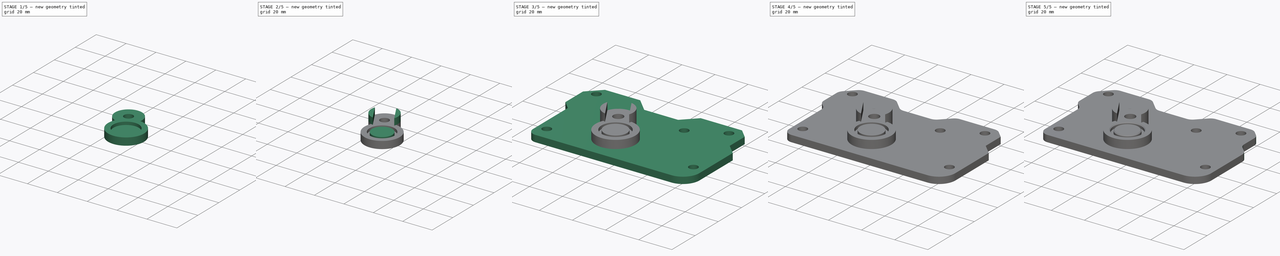
[diagram: build sequence overview — one tinted view per stage of 5, left to right]
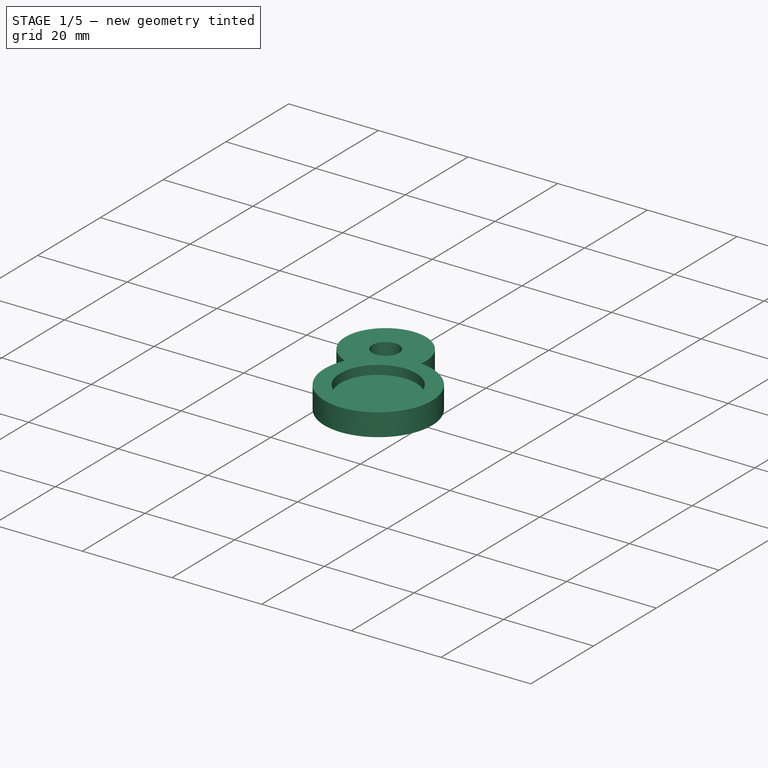
[diagram: stage 1 of 5 — iso view after this stage's code; geometry added in this stage tinted green]
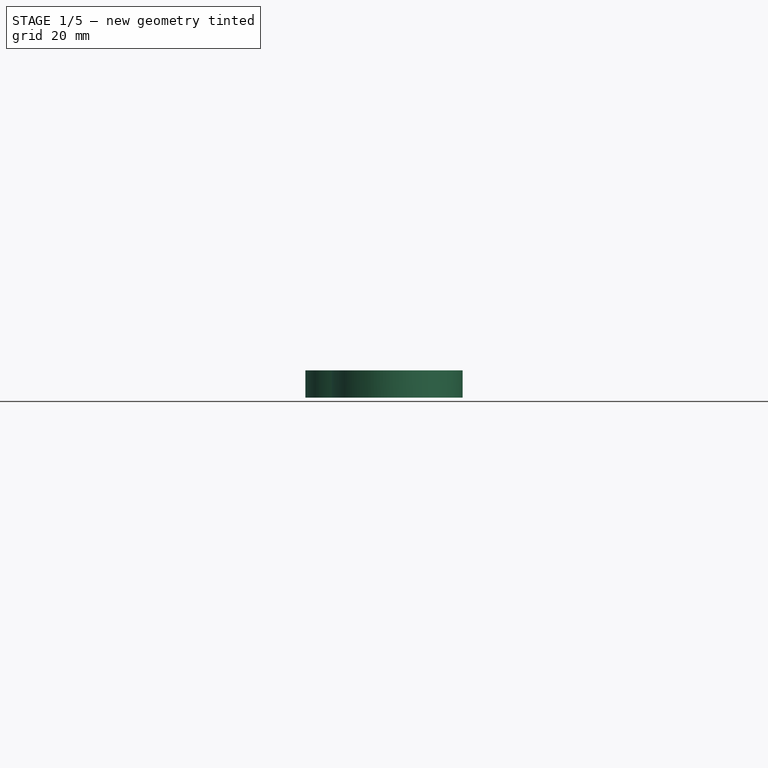
[diagram: stage 1 of 5 — front view after this stage's code; geometry added in this stage tinted green]
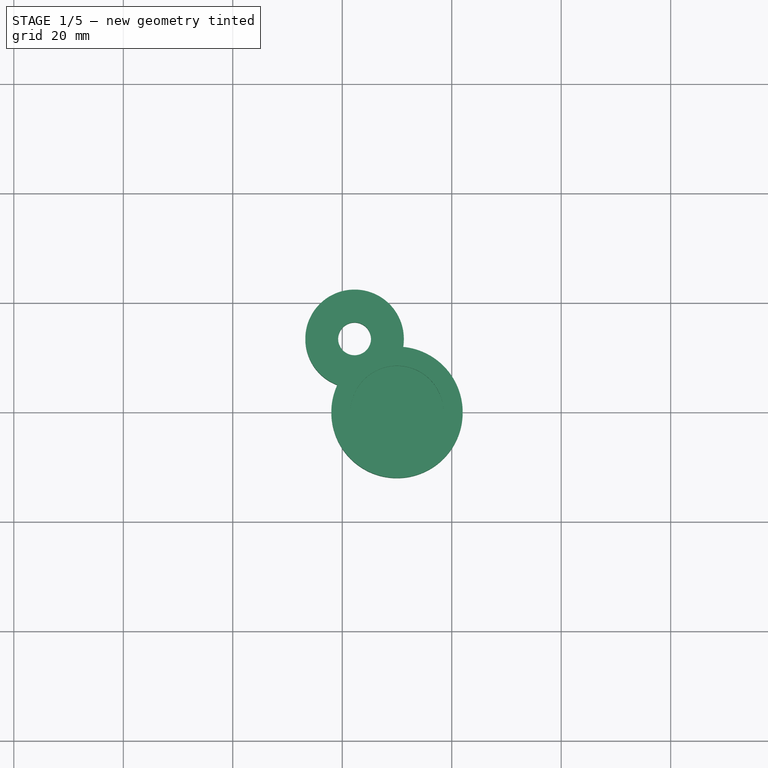
[diagram: stage 1 of 5 — top view after this stage's code; geometry added in this stage tinted green]
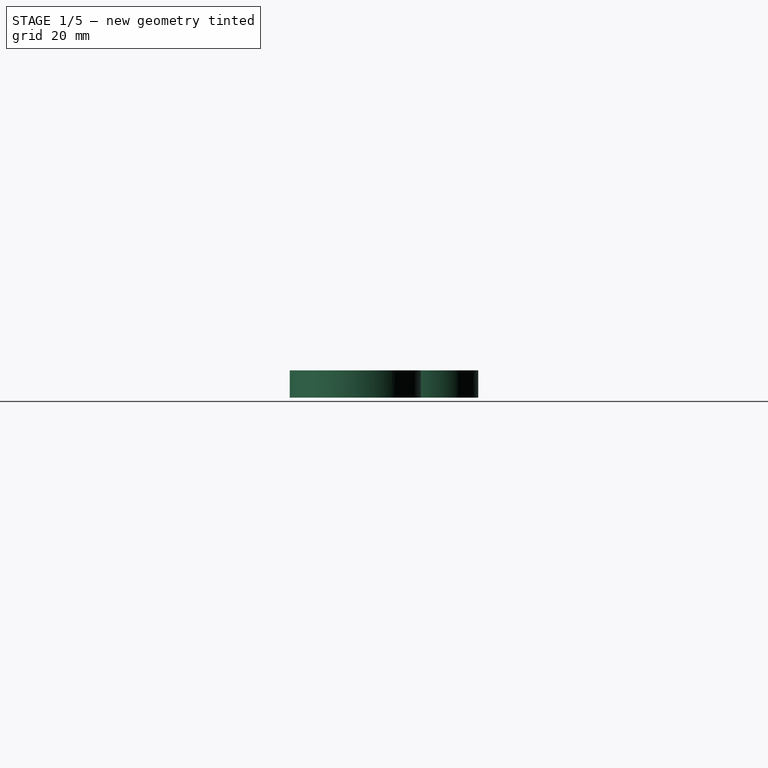
[diagram: stage 1 of 5 — right view after this stage's code; geometry added in this stage tinted green]
FCSTD DOCUMENT  (FreeCAD 0.19R24276 (Git))
Label: Ventil_support_V4_long_bar_oppozite_side_v1
License: All rights reserved
LicenseURL: http://en.wikipedia.org/wiki/All_rights_reserved
objects: Sketcher::SketchObject×9, PartDesign::Pad×6, PartDesign::Fillet×6, PartDesign::Pocket×2, PartDesign::Chamfer×2, PartDesign::Body×1
note: 42 computed .brp shape members not serialized (recipe doc carries the construction recipe); baked Part::Feature solids carry a one-line shape summary decoded from their .brp

FEATURE [Sketcher::SketchObject] Sketch  label="Sketch_d17_d24"
  FullyConstrained = true
  MapMode = 5
  Support = -> [XY_Plane]
  sketch-geometry (4):
    g0: Circle CenterX=0 CenterY=0 CenterZ=0 NormalX=0 NormalY=0 NormalZ=1 AngleXU=0 Radius=8.5
    g1: Circle CenterX=0 CenterY=0 CenterZ=0 NormalX=0 NormalY=0 NormalZ=1 AngleXU=0 Radius=12
    g2: Circle CenterX=-10 CenterY=0 CenterZ=0 NormalX=0 NormalY=0 NormalZ=1 AngleXU=0 Radius=12
    g3: Circle CenterX=-10 CenterY=0 CenterZ=0 NormalX=0 NormalY=0 NormalZ=1 AngleXU=0 Radius=8.5
  constraints (9):
    c: Coincident(g0,g-1)
    c: Diameter(g0) = 17
    c: Coincident(g1,g-1)
    c: Diameter(g1) = 24
    c: PointOnObject(g2,g-1)
    c: Coincident(g3,g2)
    c: Equal(g0,g3)
    c: Equal(g1,g2)
    c: DistanceX(g2,g-1) = 10
FEATURE [PartDesign::Pad] Pad  label="Pad_h2"
  Direction = (1,1,1)
  Length = 2
  Length2 = 100
  Profile = -> Sketch
  Type = 0
FEATURE [Sketcher::SketchObject] Sketch001  label="Sketch001_d18_d24"
  FullyConstrained = true
  MapMode = 5
  Placement = pos=(0,0,2) rot=(0,0,1;0rad)
  Support = -> [Pad]
  sketch-geometry (14):
    g0: LineSegment StartX=0 StartY=0 StartZ=0 EndX=7.75 EndY=-13.4234 EndZ=0
    g1: Circle CenterX=7.75 CenterY=-13.4234 CenterZ=0 NormalX=0 NormalY=0 NormalZ=1 AngleXU=0 Radius=3
    g2: ArcOfCircle CenterX=7.75 CenterY=-13.4234 CenterZ=0 NormalX=0 NormalY=0 NormalZ=1 AngleXU=0 Radius=9 StartAngle=2.97679 EndAngle=7.49519
    g3: ArcOfCircle CenterX=0 CenterY=0 CenterZ=0 NormalX=0 NormalY=0 NormalZ=1 AngleXU=0 Radius=12 StartAngle=5.85373 EndAngle=10.9014
    g4: Circle CenterX=0 CenterY=0 CenterZ=0 NormalX=0 NormalY=0 NormalZ=1 AngleXU=0 Radius=8.5
    g5: LineSegment StartX=0 StartY=0 StartZ=0 EndX=-7.75 EndY=13.4234 EndZ=0
    g6: Circle CenterX=-7.75 CenterY=13.4234 CenterZ=0 NormalX=0 NormalY=0 NormalZ=1 AngleXU=0 Radius=3
    g7: ArcOfCircle CenterX=-7.75 CenterY=13.4234 CenterZ=0 NormalX=0 NormalY=0 NormalZ=1 AngleXU=0 Radius=9 StartAngle=6.11838 EndAngle=10.6368
    g8: ArcOfCircle CenterX=0 CenterY=0 CenterZ=0 NormalX=0 NormalY=0 NormalZ=1 AngleXU=0 Radius=12 StartAngle=2.71214 EndAngle=7.75984
    g9: Circle CenterX=-10 CenterY=0 CenterZ=0 NormalX=0 NormalY=0 NormalZ=1 AngleXU=0 Radius=8.5
    g10: ArcOfCircle CenterX=-10 CenterY=0 CenterZ=0 NormalX=0 NormalY=0 NormalZ=1 AngleXU=0 Radius=12 StartAngle=2.71214 EndAngle=7.75984
    g11: LineSegment StartX=-10 StartY=0 StartZ=0 EndX=-17.75 EndY=13.4234 EndZ=0
    g12: Circle CenterX=-17.75 CenterY=13.4234 CenterZ=0 NormalX=0 NormalY=0 NormalZ=1 AngleXU=0 Radius=3
    g13: ArcOfCircle CenterX=-17.75 CenterY=13.4234 CenterZ=0 NormalX=0 NormalY=0 NormalZ=1 AngleXU=0 Radius=9 StartAngle=6.11838 EndAngle=10.6368
  constraints (40):
    c: Coincident(g0,g-1)
    c: Angle(g0,g-1) = 1.0472
    c: Coincident(g1,g0)
    c: Diameter(g1) = 6
    c: Distance(g0) = 15.5
    c: Coincident(g2,g0)
    c: Diameter(g2) = 18
    c: Coincident(g3,g-1)
    c: Coincident(g4,g-1)
    c: Diameter(g3) = 24
    c: Diameter(g4) = 17
    c: Coincident(g3,g2)
    c: Coincident(g3,g2)
    c: Coincident(g5,g3)
    c: Parallel(g5,g0)
    c: Coincident(g6,g5)
    c: Diameter(g6) = 6
    c: Coincident(g7,g5)
    c: Diameter(g7) = 18
    c: Coincident(g8,g4)
    c: Diameter(g8) = 24
    c: PointOnObject(g8,g7)
    c: PointOnObject(g8,g7)
    c: PointOnObject(g7,g3)
    c: PointOnObject(g7,g3)
    c: Distance(g6,g4) = 15.5
    c: PointOnObject(g9,g-1)
    c: Equal(g4,g9)
    c: DistanceX(g9,g4) = 10
    c: Coincident(g10,g9)
    c: Equal(g10,g8)
    c: Coincident(g11,g9)
    c: Angle(g-1,g11) = 2.0944
    c: Distance(g11) = 15.5
    c: Coincident(g12,g11)
    c: Coincident(g13,g11)
    c: Equal(g6,g12)
    c: Equal(g13,g7)
    c: Coincident(g13,g10)
    c: Coincident(g10,g13)
FEATURE [PartDesign::Pad] Pad001  label="Pad001_h5"
  BaseFeature = -> Pad
  Direction = (1,1,1)
  Length = 5
  Length2 = 100
  Profile = -> Sketch001
  Reversed = true
  Type = 0
FEATURE [Sketcher::SketchObject] Sketch002  label="Sketch002_d17"
  FullyConstrained = true
  MapMode = 5
  Placement = pos=(0,0,-3) rot=(1,0,0;3.14159rad)
  Support = -> [Pad001]
  sketch-geometry (3):
    g0: Circle CenterX=0 CenterY=0 CenterZ=0 NormalX=0 NormalY=0 NormalZ=1 AngleXU=0 Radius=6.9
    g1: Circle CenterX=0 CenterY=0 CenterZ=0 NormalX=0 NormalY=0 NormalZ=1 AngleXU=0 Radius=8.5
    g2: Circle CenterX=-10 CenterY=0 CenterZ=0 NormalX=0 NormalY=0 NormalZ=1 AngleXU=0 Radius=8.5
  constraints (7):
    c: Coincident(g0,g-1)
    c: Coincident(g1,g-1)
    c: Diameter(g1) = 17
    c: Diameter(g0) = 13.8
    c: PointOnObject(g2,g-1)
    c: Equal(g1,g2)
    c: DistanceX(g2,g1) = 10
FEATURE [PartDesign::Pad] Pad002  label="Pad002_h3"
  BaseFeature = -> Pad001
  Direction = (1,1,1)
  Length = 3
  Length2 = 100
  Profile = -> Sketch002
  Reversed = true
  Type = 0
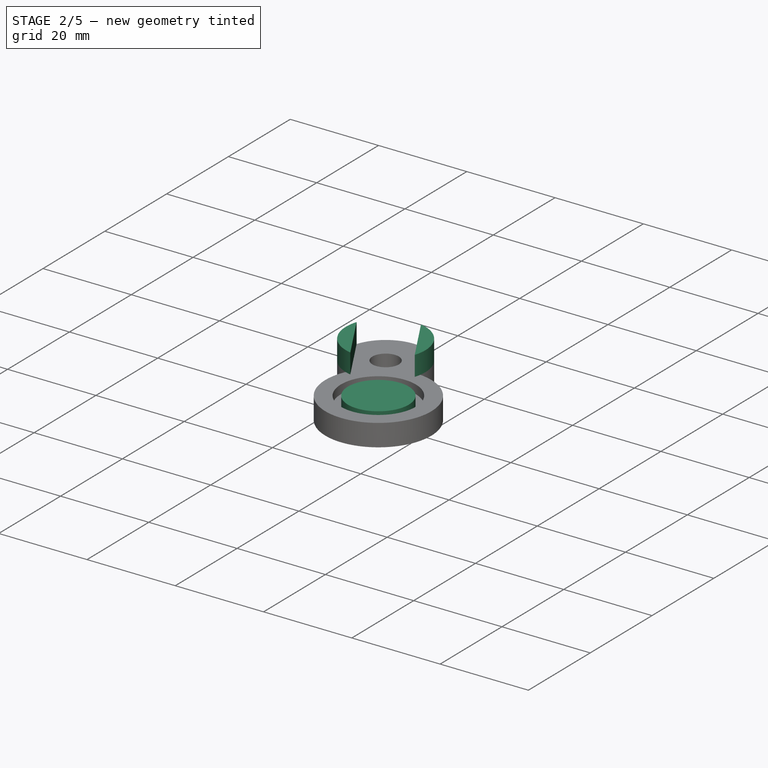
[diagram: stage 2 of 5 — iso view after this stage's code; geometry added in this stage tinted green]
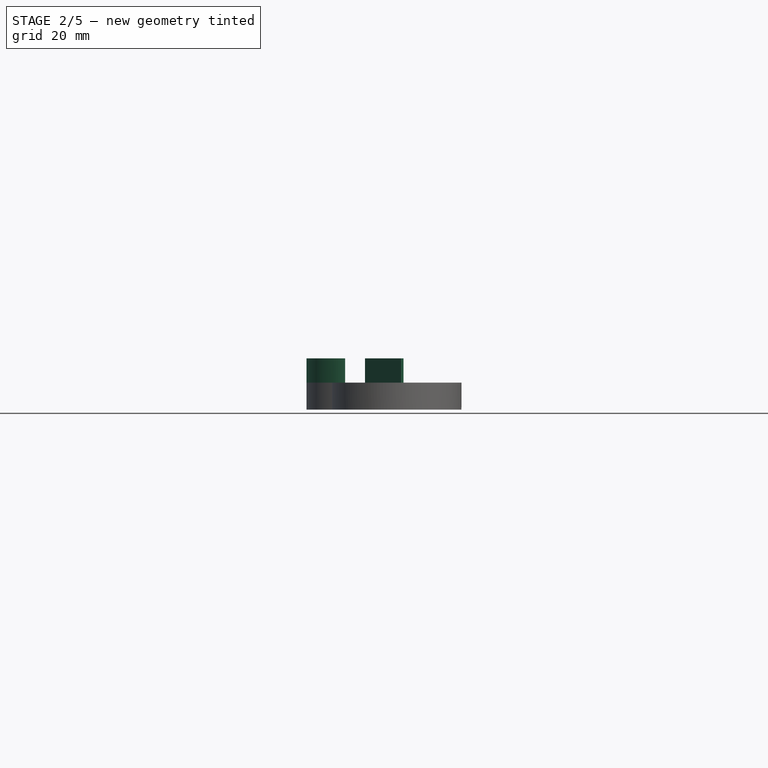
[diagram: stage 2 of 5 — front view after this stage's code; geometry added in this stage tinted green]
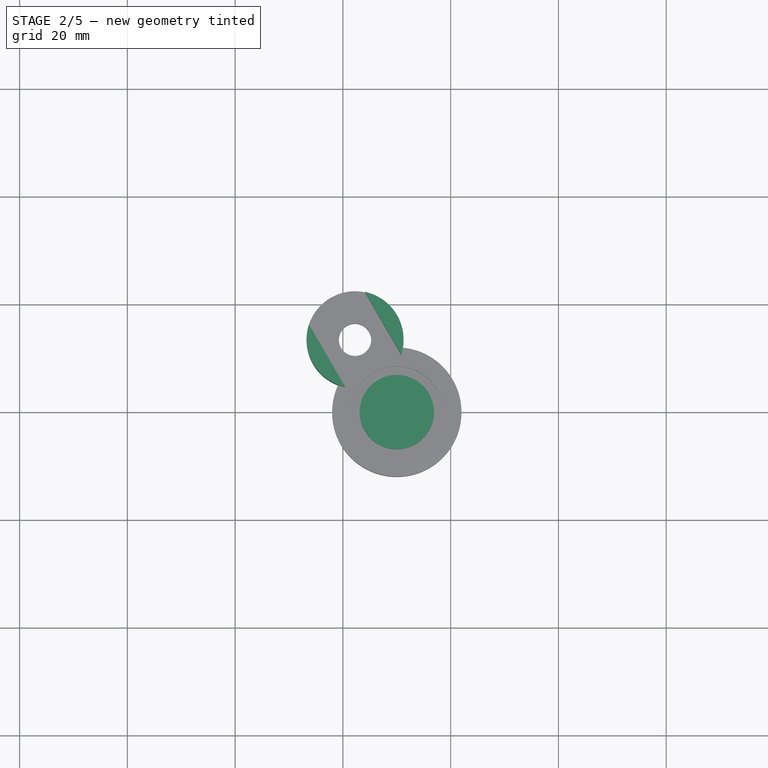
[diagram: stage 2 of 5 — top view after this stage's code; geometry added in this stage tinted green]
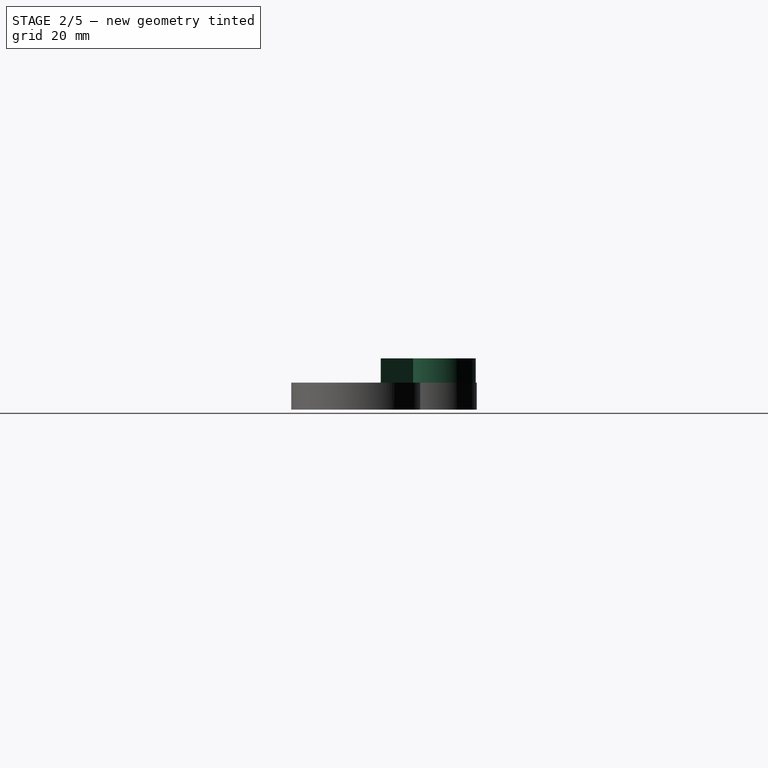
[diagram: stage 2 of 5 — right view after this stage's code; geometry added in this stage tinted green]
FEATURE [Sketcher::SketchObject] Sketch003  label="Sketch003_d13,6"
  FullyConstrained = true
  MapMode = 5
  Support = -> [Pad002]
  sketch-geometry (2):
    g0: Circle CenterX=0 CenterY=0 CenterZ=0 NormalX=0 NormalY=0 NormalZ=1 AngleXU=0 Radius=6.9
    g1: Circle CenterX=-10 CenterY=0 CenterZ=0 NormalX=0 NormalY=0 NormalZ=1 AngleXU=0 Radius=6.9
  constraints (5):
    c: Coincident(g0,g-1)
    c: Diameter(g0) = 13.8
    c: PointOnObject(g1,g-1)
    c: Equal(g1,g0)
    c: DistanceX(g1,g0) = 10
FEATURE [PartDesign::Pad] Pad003  label="Pad003_h2"
  BaseFeature = -> Pad002
  Direction = (1,1,1)
  Length = 2
  Length2 = 100
  Profile = -> Sketch003
  Type = 0
FEATURE [Sketcher::SketchObject] Sketch004  label="Sketch004_d18_2half"
  FullyConstrained = false
  MapMode = 5
  Placement = pos=(0,0,2) rot=(0,0,1;0rad)
  Support = -> [Pad003]
  sketch-geometry (17):
    g0: LineSegment StartX=-16.3003 StartY=16.2329 StartZ=0 EndX=-9.59205 EndY=4.61392 EndZ=0
    g1: LineSegment StartX=0.800254 StartY=10.6139 StartZ=0 EndX=-5.90795 EndY=22.2329 EndZ=0
    g2: ArcOfCircle CenterX=-7.75 CenterY=13.4234 CenterZ=0 NormalX=0 NormalY=0 NormalZ=1 AngleXU=0 Radius=9 StartAngle=2.82412 EndAngle=4.50626
    g3: LineSegment StartX=-9.59205 StartY=4.61392 StartZ=0 EndX=-4.3959 EndY=7.61392 EndZ=0
    g4: ArcOfCircle CenterX=-7.75 CenterY=13.4234 CenterZ=0 NormalX=0 NormalY=0 NormalZ=1 AngleXU=0 Radius=9 StartAngle=5.96572 EndAngle=7.64785
    g5: Circle CenterX=0 CenterY=0 CenterZ=0 NormalX=0 NormalY=0 NormalZ=1 AngleXU=0 Radius=9.75
    g6: LineSegment StartX=0 StartY=0 StartZ=0 EndX=-7.75 EndY=13.4234 EndZ=0
    g7: LineSegment StartX=-7.75 StartY=13.4234 StartZ=0 EndX=-4.3959 EndY=7.61392 EndZ=0
    g8: LineSegment StartX=-10 StartY=27.0189 StartZ=0 EndX=-10 EndY=0 EndZ=0
    g9: LineSegment StartX=-26.3003 StartY=16.2329 StartZ=0 EndX=-19.5921 EndY=4.61392 EndZ=0
    g10: LineSegment StartX=-9.19975 StartY=10.6139 StartZ=0 EndX=-15.9079 EndY=22.2329 EndZ=0
    g11: ArcOfCircle CenterX=-17.75 CenterY=13.4234 CenterZ=0 NormalX=0 NormalY=0 NormalZ=1 AngleXU=0 Radius=9 StartAngle=2.82412 EndAngle=4.50626
    g12: LineSegment StartX=-19.5921 StartY=4.61392 StartZ=0 EndX=-14.3959 EndY=7.61392 EndZ=0
    g13: ArcOfCircle CenterX=-17.75 CenterY=13.4234 CenterZ=0 NormalX=0 NormalY=0 NormalZ=1 AngleXU=0 Radius=9 StartAngle=5.96572 EndAngle=7.64785
    g14: LineSegment StartX=-10 StartY=0 StartZ=0 EndX=-17.75 EndY=13.4234 EndZ=0
    g15: LineSegment StartX=-17.75 StartY=13.4234 StartZ=0 EndX=-14.3959 EndY=7.61392 EndZ=0
    g16: LineSegment StartX=-31.8592 StartY=0 StartZ=0 EndX=-10 EndY=0 EndZ=0
  constraints (47):
    c: Diameter(g2) = 18
    c: PointOnObject(g0,g2)
    c: Coincident(g3,g0)
    c: Distance(g0,g1) = 12
    c: Coincident(g4,g1)
    c: Coincident(g2,g0)
    c: Equal(g2,g4)
    c: PointOnObject(g2,g3)
    c: Coincident(g4,g1)
    c: Coincident(g2,g4)
    c: Coincident(g5,g-1)
    c: Diameter(g5) = 19.5
    c: Coincident(g6,g-1)
    c: Distance(g6) = 15.5
    c: Coincident(g7,g2)
    c: Coincident(g7,g3)
    c: Symmetric(g0,g1,g3)
    c: Parallel(g7,g1)
    c: Parallel(g0,g7)
    c: Coincident(g2,g6)
    c: Angle(g-1,g6) = 2.0944
    c: Parallel(g6,g7)
    c: Vertical(g8)
    c: Equal(g2,g11) = 18
    c: PointOnObject(g9,g11)
    c: Coincident(g12,g9)
    c: Distance(g9,g10) = 12
    c: Coincident(g13,g10)
    c: Coincident(g11,g9)
    c: Equal(g11,g13)
    c: PointOnObject(g11,g12)
    c: Coincident(g13,g10)
    c: Coincident(g11,g13)
    c: Equal(g6,g14) = 15.5
    c: Coincident(g15,g11)
    c: Coincident(g15,g12)
    c: Symmetric(g9,g10,g12)
    c: Parallel(g15,g10)
    c: Parallel(g9,g15)
    c: Coincident(g11,g14)
    c: Parallel(g14,g15)
    c: PointOnObject(g16,g-1)
    c: Horizontal(g16)
    c: Coincident(g16,g8)
    c: DistanceX(g8,g-1) = 10
    c: Parallel(g14,g6)
    c: Coincident(g14,g8)
FEATURE [PartDesign::Pad] Pad004  label="Pad004_h4,5"
  BaseFeature = -> Pad003
  Direction = (1,1,1)
  Length = 4.5
  Length2 = 100
  Profile = -> Sketch004
  Type = 0
FEATURE [Sketcher::SketchObject] Sketch005  label="Sketch005_54x20"
  AttachmentOffset = pos=(0,0,-5) rot=(0,0,1;0rad)
  FullyConstrained = false
  MapMode = 5
  Placement = pos=(0,0,-3) rot=(0,0,1;0rad)
  Support = -> [Pad004]
  sketch-geometry (44):
    g0: GeomPoint X=1 Y=0 Z=0
    g1: GeomPoint X=1 Y=0 Z=0
    g2: GeomPoint X=1 Y=0 Z=0
    g3: GeomPoint X=1 Y=0 Z=0
    g4: Circle CenterX=-23.5 CenterY=5 CenterZ=0 NormalX=0 NormalY=0 NormalZ=1 AngleXU=0 Radius=2
    g5: Circle CenterX=-23.5 CenterY=-5 CenterZ=0 NormalX=0 NormalY=0 NormalZ=1 AngleXU=0 Radius=2
    g6: LineSegment StartX=1 StartY=0 StartZ=0 EndX=1 EndY=-5 EndZ=0
    g7: Circle CenterX=25.5 CenterY=5 CenterZ=0 NormalX=0 NormalY=0 NormalZ=1 AngleXU=0 Radius=2
    g8: Circle CenterX=25.5 CenterY=-5 CenterZ=0 NormalX=0 NormalY=0 NormalZ=1 AngleXU=0 Radius=2
    g9: LineSegment StartX=1 StartY=0 StartZ=0 EndX=-23.5 EndY=0 EndZ=0
    g10: LineSegment StartX=1 StartY=0 StartZ=0 EndX=49.8748 EndY=0 EndZ=0
    g11: ArcOfCircle CenterX=-7.75 CenterY=13.4234 CenterZ=0 NormalX=0 NormalY=0 NormalZ=1 AngleXU=0 Radius=9 StartAngle=0.290352 EndAngle=2.85124
    g12: LineSegment StartX=0 StartY=0 StartZ=0 EndX=-7.75 EndY=13.4234 EndZ=0
    g13: Circle CenterX=-44.5 CenterY=0 CenterZ=0 NormalX=0 NormalY=0 NormalZ=1 AngleXU=0 Radius=2.65
    g14: LineSegment StartX=42 StartY=-19 StartZ=0 EndX=-50.5 EndY=-19 EndZ=0
    g15: LineSegment StartX=-50 StartY=-19 StartZ=0 EndX=47 EndY=-19 EndZ=0
    g16: LineSegment StartX=47 StartY=-19 StartZ=0 EndX=47 EndY=16 EndZ=0
    g17: Circle CenterX=-44.5 CenterY=0 CenterZ=0 NormalX=0 NormalY=0 NormalZ=1 AngleXU=0 Radius=5.5
    g18: Circle CenterX=40.5 CenterY=-5 CenterZ=0 NormalX=0 NormalY=0 NormalZ=1 AngleXU=0 Radius=2.65
    g19: Circle CenterX=40.5 CenterY=-5 CenterZ=0 NormalX=0 NormalY=0 NormalZ=1 AngleXU=0 Radius=5.5
    g20: LineSegment StartX=-50 StartY=-19 StartZ=0 EndX=-50 EndY=16 EndZ=0
    g21: LineSegment StartX=-16.3733 StartY=16 StartZ=0 EndX=-50 EndY=16 EndZ=0
    g22: LineSegment StartX=0.873288 StartY=16 StartZ=0 EndX=47 EndY=16 EndZ=0
    g23: Circle CenterX=-27.75 CenterY=27.4234 CenterZ=0 NormalX=0 NormalY=0 NormalZ=1 AngleXU=0 Radius=2.65
    g24: Circle CenterX=-47.75 CenterY=37.4234 CenterZ=0 NormalX=0 NormalY=0 NormalZ=1 AngleXU=0 Radius=2.65
    g25: Circle CenterX=32.25 CenterY=37.4234 CenterZ=0 NormalX=0 NormalY=0 NormalZ=1 AngleXU=0 Radius=2.65
    g26: LineSegment StartX=47 StartY=16 StartZ=0 EndX=47 EndY=19.6128 EndZ=0
    g27: LineSegment StartX=47 StartY=19.6128 StartZ=0 EndX=40.9545 EndY=25.6583 EndZ=0
    g28: LineSegment StartX=40.9545 StartY=25.6583 StartZ=0 EndX=40.9545 EndY=38.5536 EndZ=0
    g29: LineSegment StartX=40.9545 StartY=38.5536 StartZ=0 EndX=35.5887 EndY=43.9194 EndZ=0
    g30: LineSegment StartX=10.6316 StartY=43.9194 StartZ=0 EndX=35.5887 EndY=43.9194 EndZ=0
    g31: LineSegment StartX=10.6316 StartY=43.9194 StartZ=0 EndX=2.61631 EndY=35.9041 EndZ=0
    g32: LineSegment StartX=2.61631 StartY=35.9041 StartZ=0 EndX=-17.8463 EndY=35.9041 EndZ=0
    g33: LineSegment StartX=-17.8463 StartY=35.9041 StartZ=0 EndX=-25.8617 EndY=43.9194 EndZ=0
    g34: LineSegment StartX=-25.8617 StartY=43.9194 StartZ=0 EndX=-47.1343 EndY=43.9194 EndZ=0
    g35: LineSegment StartX=-47.1343 StartY=43.9194 StartZ=0 EndX=-54.9278 EndY=36.1259 EndZ=0
    g36: LineSegment StartX=-54.9278 StartY=36.1259 StartZ=0 EndX=-54.9278 EndY=20.9278 EndZ=0
    g37: LineSegment StartX=-54.9278 StartY=20.9278 StartZ=0 EndX=-50 EndY=16 EndZ=0
    g38: Circle CenterX=12.25 CenterY=27.4234 CenterZ=0 NormalX=0 NormalY=0 NormalZ=1 AngleXU=0 Radius=2.65
    g39: Circle CenterX=-7.75 CenterY=52.9234 CenterZ=0 NormalX=0 NormalY=0 NormalZ=1 AngleXU=0 Radius=16
    g40: LineSegment StartX=-26.2058 StartY=22.9234 StartZ=0 EndX=-15.8764 EndY=22.9234 EndZ=0
    g41: LineSegment StartX=-10 StartY=0 StartZ=0 EndX=-10 EndY=-7.70468 EndZ=0
    g42: Circle CenterX=-44.5 CenterY=-10 CenterZ=0 NormalX=0 NormalY=0 NormalZ=1 AngleXU=0 Radius=2.65
    g43: Circle CenterX=-44.5 CenterY=-10 CenterZ=0 NormalX=0 NormalY=0 NormalZ=1 AngleXU=0 Radius=5.5
  constraints (106):
    c: Coincident(g1,g0)
    c: Coincident(g3,g2)
    c: Coincident(g2,g0)
    c: Vertical(g5,g4)
    c: Coincident(g6,g0)
    c: Vertical(g6)
    c: Equal(g8,g7)
    c: Equal(g7,g5)
    c: Equal(g5,g4)
    c: Diameter(g8) = 4
    c: Vertical(g7,g8)
    c: Horizontal(g5,g8)
    c: Horizontal(g4,g7)
    c: Coincident(g9,g0)
    c: Horizontal(g9)
    c: Symmetric(g5,g4,g9)
    c: Coincident(g10,g0)
    c: Horizontal(g10)
    c: Symmetric(g5,g8,g6)
    c: DistanceX(g5,g8) = 49
    c: Horizontal(g0,g-1)
    c: Diameter(g11) = 18
    c: Coincident(g12,g-1)
    c: Coincident(g12,g11)
    c: Angle(g10,g12) = 2.0944
    c: Distance(g11,g-1) = 15.5
    c: Horizontal(g14)
    c: DistanceY(g14,g-1) = 19
    c: Coincident(g16,g15)
    c: Vertical(g16)
    c: Diameter(g13) = 5.3
    c: Horizontal(g15)
    c: Coincident(g17,g13)
    c: Diameter(g17) = 11
    c: Horizontal(g13,g9)
    c: DistanceX(g14,g13) = 6
    c: DistanceY(g8,g7) = 10
    c: Equal(g18,g13)
    c: Coincident(g19,g18)
    c: Equal(g17,g19)
    c: DistanceX(g13,g18) = 85
    c: DistanceX(g14,g-1) = 50.5
    c: DistanceX(g15,g15) = 97
    c: Coincident(g20,g15)
    c: Vertical(g20)
    c: Tangent(g20,g17)
    c: Coincident(g21,g11)
    c: Horizontal(g21)
    c: Coincident(g20,g21)
    c: DistanceY(g20,g20) = 35
    c: Horizontal(g11,g11)
    c: DistanceY(g18,g10) = 5
    c: Coincident(g22,g11)
    c: Coincident(g22,g16)
    c: Horizontal(g22)
    c: Equal(g25,g24)
    c: Equal(g24,g23)
    c: Horizontal(g24,g25)
    c: DistanceY(g15,g-1) = 19
    c: Coincident(g26,g16)
    c: Vertical(g26)
    c: Coincident(g27,g26)
    c: Coincident(g28,g27)
    c: Vertical(g28)
    c: Coincident(g29,g28)
    c: Coincident(g30,g29)
    c: Horizontal(g30)
    c: Coincident(g31,g30)
    c: Coincident(g32,g31)
    c: Horizontal(g32)
    c: Coincident(g33,g32)
    c: Coincident(g34,g33)
    c: Horizontal(g34)
    c: Coincident(g35,g34)
    c: Coincident(g36,g35)
    c: Vertical(g36)
    c: Coincident(g37,g36)
    c: Coincident(g37,g20)
    c: Angle(g27,g26) = 2.35619
    c: Angle(g29,g28) = 2.35619
    c: Angle(g31,g30) = 2.35619
    c: Angle(g32,g33) = 2.35619
    c: Angle(g35,g34) = 2.35619
    c: Angle(g37,g36) = 2.35619
    c: Horizontal(g23,g38)
    c: DistanceY(g23,g24) = 10
    c: DistanceX(g24,g23) = 20
    c: DistanceX(g23,g38) = 40
    c: DistanceX(g38,g25) = 20
    c: DistanceX(g23,g11) = 20
    c: DistanceY(g11,g23) = 14
    c: Horizontal(g33,g30)
    c: Vertical(g11,g39)
    c: Horizontal(g40)
    c: DistanceY(g40,g23) = 4.5
    c: DistanceY(g40,g39) = 30
    c: Diameter(g39) = 32
    c: Vertical(g41)
    c: DistanceX(g41,g-1) = 10
    c: DistanceX(g5,g41) = 13.5
    c: PointOnObject(g41,g9)
    c: Coincident(g43,g42)
    c: Equal(g13,g42)
    c: Equal(g17,g43)
    c: Vertical(g13,g42)
    c: DistanceY(g42,g13) = 10
FEATURE [Sketcher::SketchObject] Sketch006
  FullyConstrained = false
  MapMode = 5
  Placement = pos=(0,0,-3) rot=(0,0,1;0rad)
  sketch-geometry (6):
    g0: Circle CenterX=7.75 CenterY=-13.4234 CenterZ=0 NormalX=0 NormalY=0 NormalZ=1 AngleXU=0 Radius=3
    g1: LineSegment StartX=0 StartY=0 StartZ=0 EndX=7.75 EndY=-13.4234 EndZ=0
    g2: LineSegment StartX=0 StartY=0 StartZ=0 EndX=-7.75 EndY=13.4234 EndZ=0
    g3: Circle CenterX=-7.75 CenterY=13.4234 CenterZ=0 NormalX=0 NormalY=0 NormalZ=1 AngleXU=0 Radius=3
    g4: Circle CenterX=-17.75 CenterY=13.4234 CenterZ=0 NormalX=0 NormalY=0 NormalZ=1 AngleXU=0 Radius=3
    g5: LineSegment StartX=-10 StartY=0 StartZ=0 EndX=-17.75 EndY=13.4234 EndZ=0
  constraints (15):
    c: Coincident(g1,g-1)
    c: Coincident(g1,g0)
    c: Angle(g1,g-1) = 1.0472
    c: Distance(g1) = 15.5
    c: Diameter(g0) = 6
    c: Coincident(g2,g-1)
    c: Parallel(g2,g1)
    c: Distance(g2,g2) = 15.5
    c: Coincident(g3,g2)
    c: Equal(g0,g3)
    c: Equal(g2,g5) = 15.5
    c: Coincident(g4,g5)
    c: PointOnObject(g5,g-1)
    c: DistanceX(g5,g-1) = 10
    c: Parallel(g5,g2)
FEATURE [PartDesign::Pocket] Pocket
  BaseFeature = -> Pad004
  Length = 5
  Length2 = 100
  Profile = -> Sketch006
  Type = 0
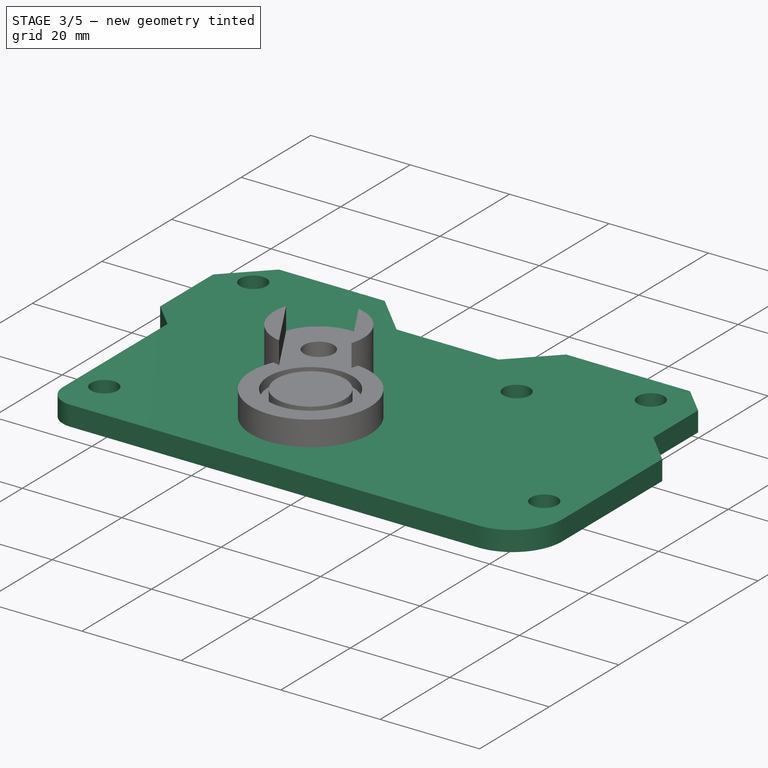
[diagram: stage 3 of 5 — iso view after this stage's code; geometry added in this stage tinted green]
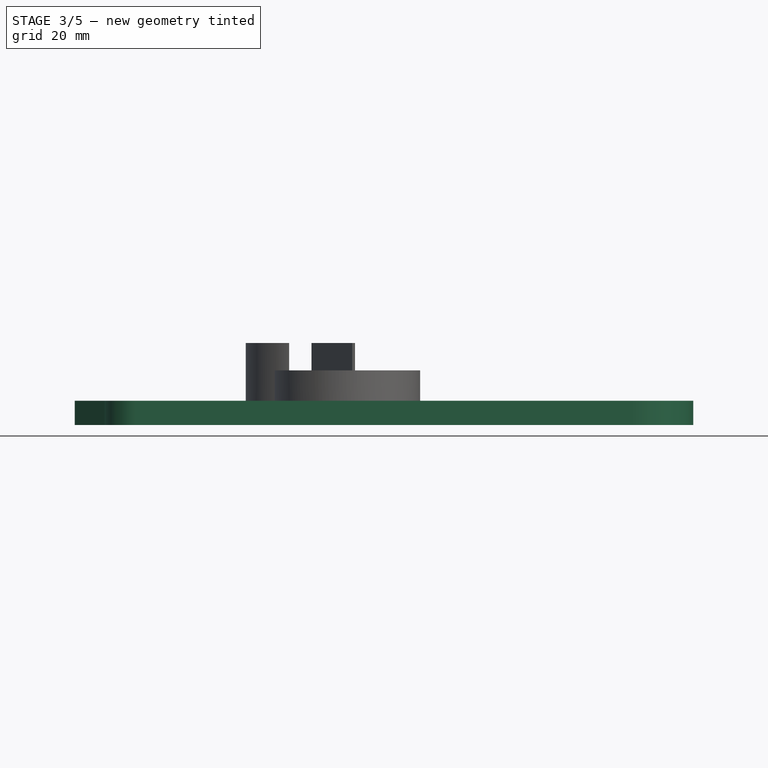
[diagram: stage 3 of 5 — front view after this stage's code; geometry added in this stage tinted green]
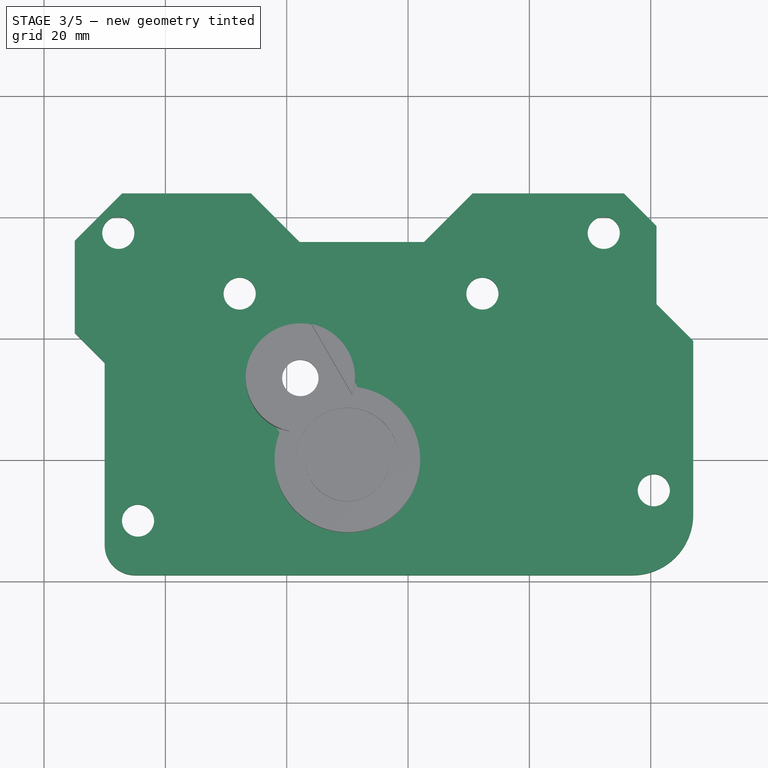
[diagram: stage 3 of 5 — top view after this stage's code; geometry added in this stage tinted green]
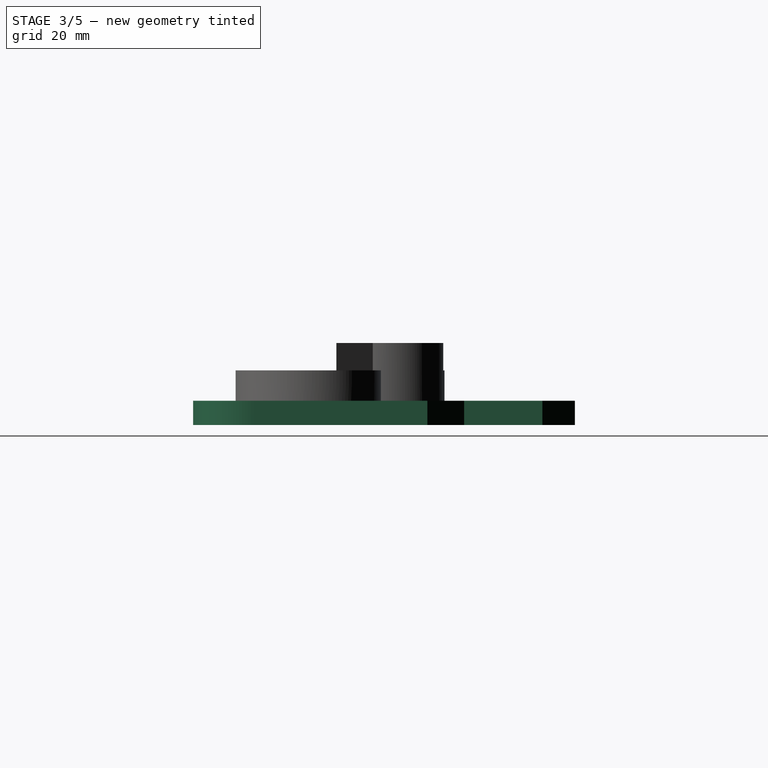
[diagram: stage 3 of 5 — right view after this stage's code; geometry added in this stage tinted green]
FEATURE [Sketcher::SketchObject] Sketch007
  FullyConstrained = false
  MapMode = 5
  Placement = pos=(0,0,-3) rot=(0,0,1;0rad)
  sketch-geometry (47):
    g0: LineSegment StartX=0 StartY=0 StartZ=0 EndX=-7.75 EndY=13.4234 EndZ=0
    g1: LineSegment StartX=-49.5831 StartY=14.9968 StartZ=0 EndX=46.985 EndY=14.9968 EndZ=0
    g2: LineSegment StartX=118.781 StartY=60.3403 StartZ=0 EndX=208.781 EndY=60.3403 EndZ=0
    g3: LineSegment StartX=208.781 StartY=60.3403 StartZ=0 EndX=208.781 EndY=88.9914 EndZ=0
    g4: LineSegment StartX=208.781 StartY=88.9914 StartZ=0 EndX=118.781 EndY=88.9914 EndZ=0
    g5: LineSegment StartX=118.781 StartY=88.9914 StartZ=0 EndX=118.781 EndY=60.3403 EndZ=0
    g6: Circle CenterX=163.781 CenterY=65.8403 CenterZ=0 NormalX=0 NormalY=0 NormalZ=1 AngleXU=0 Radius=2.5
    g7: LineSegment StartX=163.781 StartY=65.8403 StartZ=0 EndX=163.781 EndY=50.8403 EndZ=0
    g8: Circle CenterX=163.781 CenterY=50.8403 CenterZ=0 NormalX=0 NormalY=0 NormalZ=1 AngleXU=0 Radius=6.6631
    g9: Circle CenterX=143.781 CenterY=84.4914 CenterZ=0 NormalX=0 NormalY=0 NormalZ=1 AngleXU=0 Radius=2.02563
    g10: Circle CenterX=183.781 CenterY=84.4914 CenterZ=0 NormalX=0 NormalY=0 NormalZ=1 AngleXU=0 Radius=1.90318
    g11: LineSegment StartX=163.781 StartY=65.8403 StartZ=0 EndX=163.781 EndY=68.3403 EndZ=0
    g12: LineSegment StartX=143.781 StartY=84.4914 StartZ=0 EndX=183.781 EndY=84.4914 EndZ=0
    g13: LineSegment StartX=163.781 StartY=84.4914 StartZ=0 EndX=163.781 EndY=98.4914 EndZ=0
    g14: Circle CenterX=123.781 CenterY=74.4914 CenterZ=0 NormalX=0 NormalY=0 NormalZ=1 AngleXU=0 Radius=1.17504
    g15: Circle CenterX=203.781 CenterY=74.4914 CenterZ=0 NormalX=0 NormalY=0 NormalZ=1 AngleXU=0 Radius=1.45972
    g16: LineSegment StartX=-52.75 StartY=52.4234 StartZ=0 EndX=37.25 EndY=52.4234 EndZ=0
    g17: LineSegment StartX=37.25 StartY=52.4234 StartZ=0 EndX=37.25 EndY=22.9234 EndZ=0
    g18: LineSegment StartX=37.25 StartY=22.9234 StartZ=0 EndX=-52.75 EndY=22.9234 EndZ=0
    g19: LineSegment StartX=-52.75 StartY=22.9234 StartZ=0 EndX=-52.75 EndY=52.4234 EndZ=0
    g20: Circle CenterX=-7.75 CenterY=47.4234 CenterZ=0 NormalX=0 NormalY=0 NormalZ=1 AngleXU=0 Radius=2.5
    g21: Circle CenterX=-27.75 CenterY=27.4234 CenterZ=0 NormalX=0 NormalY=0 NormalZ=1 AngleXU=0 Radius=2.5
    g22: Circle CenterX=12.25 CenterY=27.4234 CenterZ=0 NormalX=0 NormalY=0 NormalZ=1 AngleXU=0 Radius=2.5
    g23: LineSegment StartX=-7.75 StartY=47.4234 StartZ=0 EndX=-7.75 EndY=44.9234 EndZ=0
    g24: LineSegment StartX=-27.75 StartY=27.4234 StartZ=0 EndX=12.25 EndY=27.4234 EndZ=0
    g25: Circle CenterX=-47.75 CenterY=37.4234 CenterZ=0 NormalX=0 NormalY=0 NormalZ=1 AngleXU=0 Radius=2.5
    g26: Circle CenterX=32.25 CenterY=37.4234 CenterZ=0 NormalX=0 NormalY=0 NormalZ=1 AngleXU=0 Radius=2.5
    g27: LineSegment StartX=-7.75 StartY=27.4234 StartZ=0 EndX=-7.75 EndY=13.4234 EndZ=0
    g28: Circle CenterX=52.25 CenterY=27.4234 CenterZ=0 NormalX=0 NormalY=0 NormalZ=1 AngleXU=0 Radius=2.5
    g29: Circle CenterX=52.25 CenterY=27.4234 CenterZ=0 NormalX=0 NormalY=0 NormalZ=1 AngleXU=0 Radius=6.5
    g30: LineSegment StartX=46.985 StartY=14.9968 StartZ=0 EndX=46.985 EndY=19.6198 EndZ=0
    g31: LineSegment StartX=46.985 StartY=19.6198 StartZ=0 EndX=41.011 EndY=25.5938 EndZ=0
    g32: LineSegment StartX=41.011 StartY=25.5938 StartZ=0 EndX=41.011 EndY=38.5559 EndZ=0
    g33: LineSegment StartX=41.011 StartY=38.5559 StartZ=0 EndX=35.6203 EndY=43.9466 EndZ=0
    g34: LineSegment StartX=35.6203 StartY=43.9466 StartZ=0 EndX=10.5986 EndY=43.9466 EndZ=0
    g35: LineSegment StartX=10.5986 StartY=43.9466 StartZ=0 EndX=2.5754 EndY=35.9234 EndZ=0
    g36: LineSegment StartX=2.5754 StartY=35.9234 StartZ=0 EndX=-17.9509 EndY=35.9234 EndZ=0
    g37: LineSegment StartX=-17.9509 StartY=35.9234 StartZ=0 EndX=-25.9362 EndY=43.9087 EndZ=0
    g38: LineSegment StartX=-25.9362 StartY=43.9087 StartZ=0 EndX=-47.3102 EndY=43.9087 EndZ=0
    g39: LineSegment StartX=-47.3102 StartY=43.9087 StartZ=0 EndX=-55.2357 EndY=35.9831 EndZ=0
    g40: LineSegment StartX=-55.2357 StartY=35.9831 StartZ=0 EndX=-55.2357 EndY=20.6495 EndZ=0
    g41: LineSegment StartX=-55.2357 StartY=20.6495 StartZ=0 EndX=-49.5831 EndY=14.9968 EndZ=0
    g42: LineSegment StartX=0.646599 StartY=55.82 StartZ=0 EndX=-16.1466 EndY=55.82 EndZ=0
    g43: LineSegment StartX=-16.1466 StartY=55.82 StartZ=0 EndX=-16.1466 EndY=39.0268 EndZ=0
    g44: LineSegment StartX=-16.1466 StartY=39.0268 StartZ=0 EndX=0.646599 EndY=39.0268 EndZ=0
    g45: LineSegment StartX=0.646599 StartY=39.0268 StartZ=0 EndX=0.646599 EndY=55.82 EndZ=0
    g46: Circle CenterX=-7.75 CenterY=47.4234 CenterZ=0 NormalX=0 NormalY=0 NormalZ=1 AngleXU=0 Radius=11.8746
  constraints (115):
    c: Coincident(g0,g-1)
    c: Angle(g-1,g0) = 2.0944
    c: Distance(g0) = 15.5
    c: Horizontal(g1)
    c: Coincident(g2,g3)
    c: Coincident(g3,g4)
    c: Coincident(g4,g5)
    c: Coincident(g5,g2)
    c: Horizontal(g2)
    c: Horizontal(g4)
    c: Vertical(g3)
    c: Vertical(g5)
    c: DistanceY(g2,g6) = 5.5
    c: Coincident(g7,g6)
    c: Vertical(g7)
    c: Coincident(g8,g7)
    c: DistanceY(g7,g7) = 15
    c: Diameter(g6) = 5
    c: Horizontal(g9,g10)
    c: DistanceY(g9,g4) = 4.5
    c: DistanceX(g9,g10) = 40
    c: DistanceX(g9,g6) = 20
    c: Coincident(g11,g6)
    c: Vertical(g11)
    c: Coincident(g12,g9)
    c: PointOnObject(g11,g6)
    c: PointOnObject(g13,g12)
    c: Tangent(g11,g13)
    c: Coincident(g12,g10)
    c: DistanceY(g13,g13) = 14
    c: Horizontal(g14,g15)
    c: DistanceY(g14,g9) = 10
    c: DistanceX(g14,g9) = 20
    c: DistanceX(g10,g15) = 20
    c: Coincident(g16,g17)
    c: Coincident(g17,g18)
    c: Coincident(g18,g19)
    c: Coincident(g19,g16)
    c: Horizontal(g16)
    c: Horizontal(g18)
    c: Vertical(g17)
    c: Vertical(g19)
    c: Diameter(g20) = 5
    c: Coincident(g23,g20)
    c: Vertical(g23)
    c: Coincident(g24,g21)
    c: PointOnObject(g23,g20)
    c: PointOnObject(g27,g24)
    c: Tangent(g23,g27)
    c: Coincident(g24,g22)
    c: Horizontal(g21,g22)
    c: Horizontal(g25,g26)
    c: Diameter(g21) = 5
    c: Equal(g21,g22)
    c: Equal(g21,g25)
    c: Equal(g21,g26)
    c: DistanceX(g21,g23) = 20
    c: DistanceX(g23,g22) = 20
    c: DistanceX(g22,g26) = 20
    c: DistanceX(g25,g21) = 20
    c: DistanceY(g21,g25) = 10
    c: DistanceX(g4,g14) = 5
    c: DistanceX(g4,g4) = 90
    c: DistanceX(g16,g25) = 5
    c: DistanceX(g16,g16) = 90
    c: DistanceY(g27,g27) = 14
    c: DistanceY(g17,g22) = 4.5
    c: DistanceY(g22,g20) = 20
    c: DistanceY(g20,g16) = 5
    c: Coincident(g27,g0)
    c: Equal(g26,g28)
    c: Horizontal(g22,g28)
    c: DistanceX(g22,g28) = 40
    c: Coincident(g29,g28)
    c: Diameter(g29) = 13
    c: Coincident(g30,g1)
    c: Coincident(g31,g30)
    c: Coincident(g32,g31)
    c: Vertical(g32)
    c: Coincident(g33,g32)
    c: Coincident(g34,g33)
    c: Horizontal(g34)
    c: Coincident(g35,g34)
    c: Coincident(g36,g35)
    c: Horizontal(g36)
    c: Coincident(g37,g36)
    c: Coincident(g38,g37)
    c: Horizontal(g38)
    c: Coincident(g39,g38)
    c: Coincident(g40,g39)
    c: Vertical(g40)
    c: Coincident(g41,g40)
    c: Coincident(g41,g1)
    c: Coincident(g42,g43)
    c: Coincident(g43,g44)
    c: Coincident(g44,g45)
    c: Coincident(g45,g42)
    c: Equal(g42,g43)
    c: Equal(g42,g44)
    c: Equal(g42,g45)
    c: PointOnObject(g42,g46)
    c: PointOnObject(g43,g46)
    c: PointOnObject(g44,g46)
    c: PointOnObject(g45,g46)
    c: Horizontal(g44)
    c: DistanceY(g17,g35) = 13
    c: DistanceY(g26,g46) = 10
    c: DistanceX(g20,g46) = 0
    c: Vertical(g30)
    c: Angle(g31,g30) = 2.35619
    c: Angle(g33,g32) = 2.35619
    c: Angle(g35,g34) = 2.35619
    c: Angle(g36,g37) = 2.35619
    c: Angle(g39,g38) = 2.35619
    c: Angle(g41,g40) = 2.35619
FEATURE [PartDesign::Pad] Pad005
  BaseFeature = -> Pocket
  Direction = (1,1,1)
  Length = 4
  Length2 = 100
  Profile = -> Sketch005
  Reversed = true
  Type = 0
FEATURE [Sketcher::SketchObject] Sketch008
  FullyConstrained = true
  MapMode = 5
  Placement = pos=(0,0,-7) rot=(1,0,0;3.14159rad)
  Support = -> [Pad005]
  sketch-geometry (16):
    g0: LineSegment StartX=0 StartY=0 StartZ=0 EndX=-7.75 EndY=-13.4234 EndZ=0
    g1: LineSegment StartX=-10.75 StartY=-8.22724 StartZ=0 EndX=-13.75 EndY=-13.4234 EndZ=0
    g2: LineSegment StartX=-13.75 StartY=-13.4234 StartZ=0 EndX=-10.75 EndY=-18.6195 EndZ=0
    g3: LineSegment StartX=-10.75 StartY=-18.6195 StartZ=0 EndX=-4.75 EndY=-18.6195 EndZ=0
    g4: LineSegment StartX=-4.75 StartY=-18.6195 StartZ=0 EndX=-1.75 EndY=-13.4234 EndZ=0
    g5: LineSegment StartX=-1.75 StartY=-13.4234 StartZ=0 EndX=-4.75 EndY=-8.22724 EndZ=0
    g6: LineSegment StartX=-4.75 StartY=-8.22724 StartZ=0 EndX=-10.75 EndY=-8.22724 EndZ=0
    g7: Circle CenterX=-7.75 CenterY=-13.4234 CenterZ=0 NormalX=0 NormalY=0 NormalZ=1 AngleXU=0 Radius=6
    g8: LineSegment StartX=-20.75 StartY=-8.22724 StartZ=0 EndX=-23.75 EndY=-13.4234 EndZ=0
    g9: LineSegment StartX=-23.75 StartY=-13.4234 StartZ=0 EndX=-20.75 EndY=-18.6195 EndZ=0
    g10: LineSegment StartX=-20.75 StartY=-18.6195 StartZ=0 EndX=-14.75 EndY=-18.6195 EndZ=0
    g11: LineSegment StartX=-14.75 StartY=-18.6195 StartZ=0 EndX=-11.75 EndY=-13.4234 EndZ=0
    g12: LineSegment StartX=-11.75 StartY=-13.4234 StartZ=0 EndX=-14.75 EndY=-8.22724 EndZ=0
    g13: LineSegment StartX=-14.75 StartY=-8.22724 StartZ=0 EndX=-20.75 EndY=-8.22724 EndZ=0
    g14: Circle CenterX=-17.75 CenterY=-13.4234 CenterZ=0 NormalX=0 NormalY=0 NormalZ=1 AngleXU=0 Radius=6
    g15: LineSegment StartX=-10 StartY=0 StartZ=0 EndX=-17.75 EndY=-13.4234 EndZ=0
  constraints (39):
    c: Coincident(g0,g-1)
    c: Angle(g0,g-1) = 2.0944
    c: Distance(g0) = 15.5
    c: Coincident(g1,g2)
    c: Coincident(g2,g3)
    c: Coincident(g3,g4)
    c: Coincident(g4,g5)
    c: Coincident(g5,g6)
    c: Coincident(g6,g1)
    c: Equal(g1, g2-g6) x5
    c: PointOnObject(g1,g7)
    c: PointOnObject(g2,g7)
    c: PointOnObject(g3,g7)
    c: PointOnObject(g4,g7)
    c: PointOnObject(g5,g7)
    c: PointOnObject(g6,g7)
    c: Coincident(g7,g0)
    c: Horizontal(g3)
    c: Diameter(g7) = 12
    c: Equal(g0,g15) = 15.5
    c: Coincident(g8,g9)
    c: Coincident(g9,g10)
    c: Coincident(g10,g11)
    c: Coincident(g11,g12)
    c: Coincident(g12,g13)
    c: Coincident(g13,g8)
    c: Equal(g8, g9-g13) x5
    c: PointOnObject(g8,g14)
    c: PointOnObject(g9,g14)
    c: PointOnObject(g10,g14)
    c: PointOnObject(g11,g14)
    c: PointOnObject(g12,g14)
    c: PointOnObject(g13,g14)
    c: Coincident(g14,g15)
    c: Horizontal(g10)
    c: Equal(g7,g14) = 12
    c: PointOnObject(g15,g-1)
    c: DistanceX(g15,g-1) = 10
    c: Parallel(g15,g0)
FEATURE [PartDesign::Pocket] Pocket001
  BaseFeature = -> Pad005
  Length = 5
  Length2 = 100
  Profile = -> Sketch008
  Type = 0
FEATURE [PartDesign::Fillet] Fillet
  Base = -> Pocket001 [Edge65]
  BaseFeature = -> Pocket001
  Radius = 5
  SupportTransform = false
FEATURE [PartDesign::Fillet] Fillet001
  Base = -> Fillet [Edge26]
  BaseFeature = -> Fillet
  Radius = 10
  SupportTransform = false
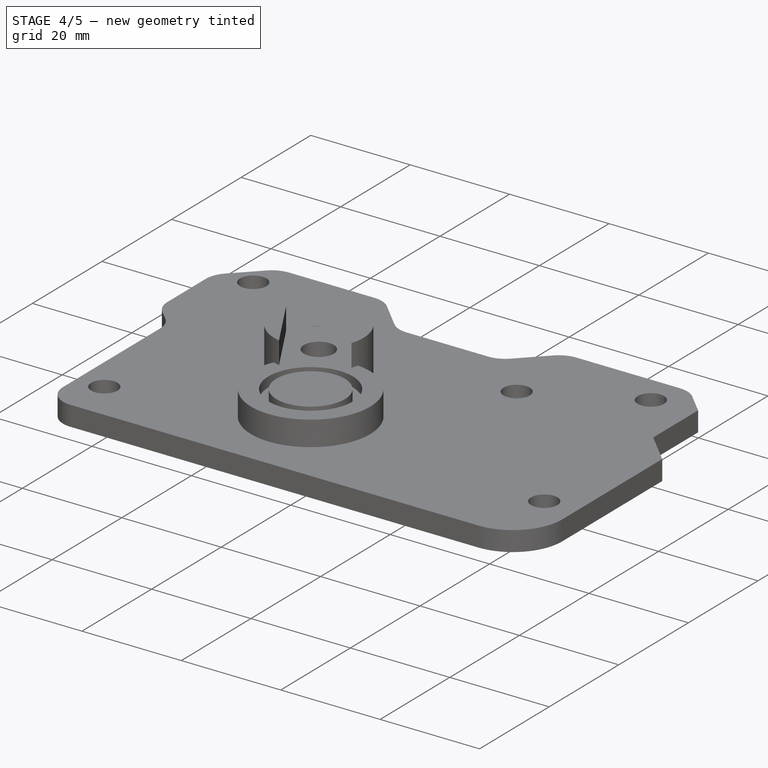
[diagram: stage 4 of 5 — iso view after this stage's code; geometry added in this stage tinted green]
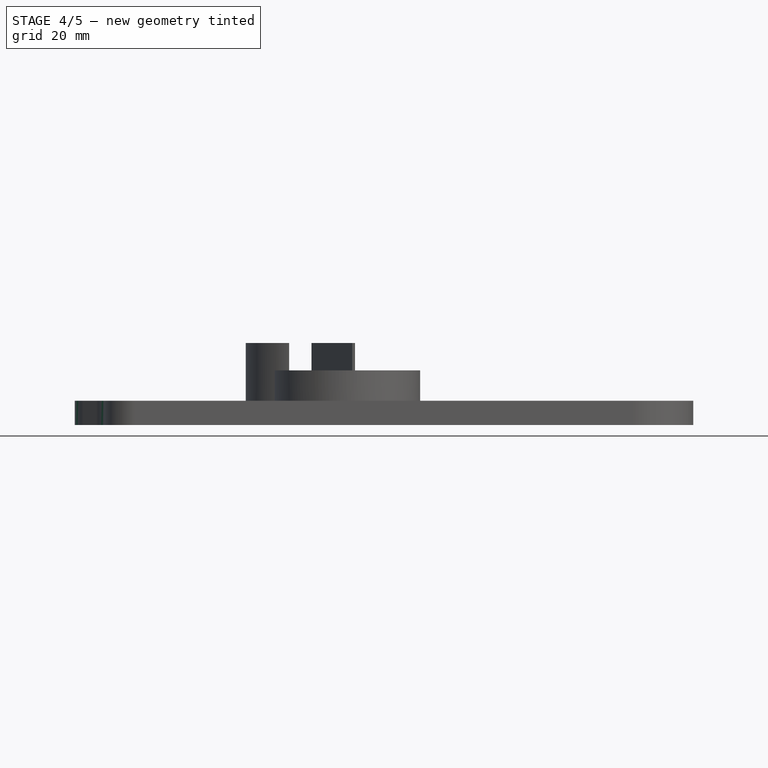
[diagram: stage 4 of 5 — front view after this stage's code; geometry added in this stage tinted green]
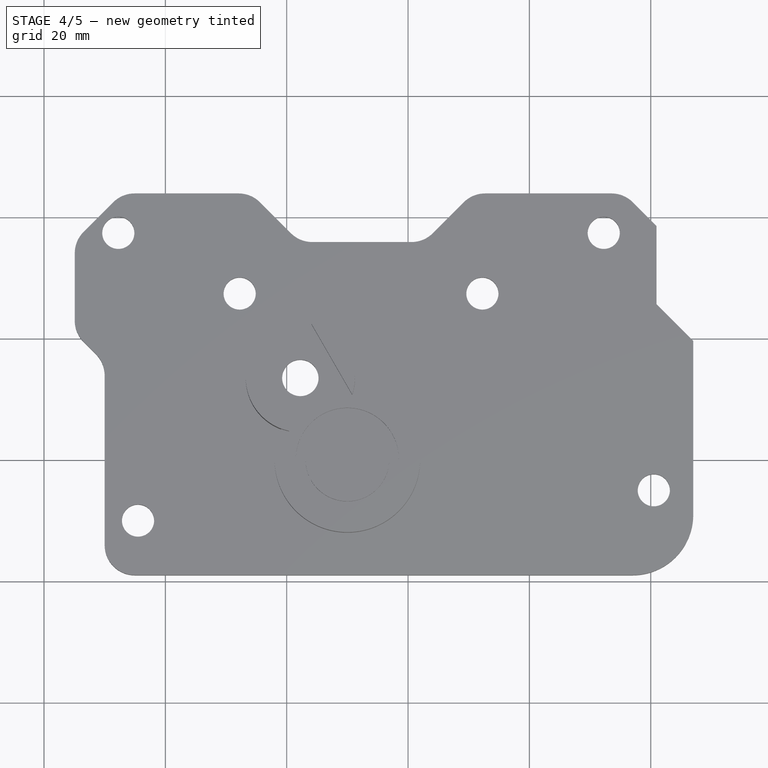
[diagram: stage 4 of 5 — top view after this stage's code; geometry added in this stage tinted green]
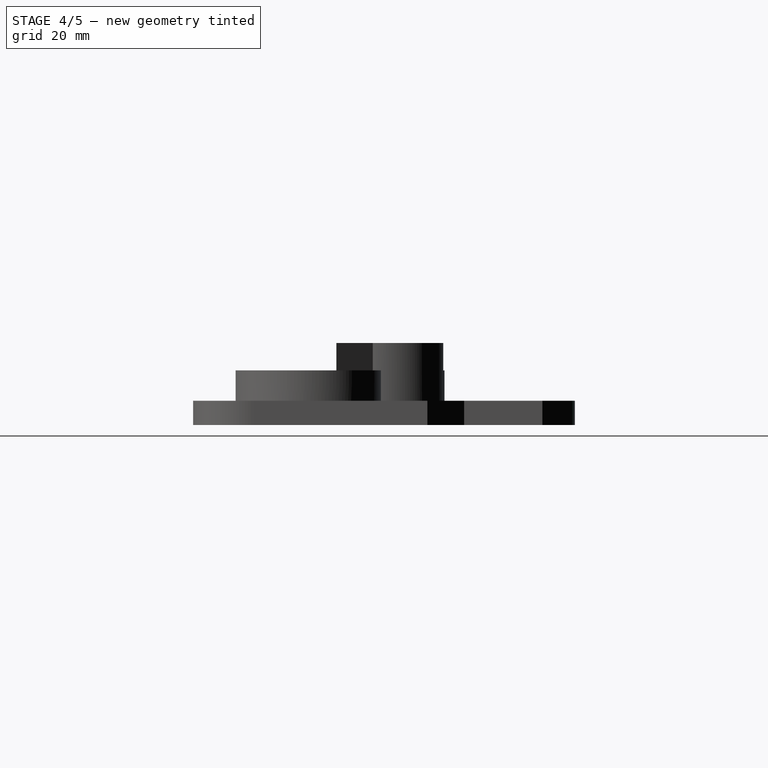
[diagram: stage 4 of 5 — right view after this stage's code; geometry added in this stage tinted green]
FEATURE [PartDesign::Fillet] Fillet002
  Base = -> Fillet001 [Edge35]
  BaseFeature = -> Fillet001
  Radius = 5
  SupportTransform = false
FEATURE [PartDesign::Fillet] Fillet003
  Base = -> Fillet002 [Edge34,Edge38]
  BaseFeature = -> Fillet002
  Radius = 5
  SupportTransform = false
FEATURE [PartDesign::Fillet] Fillet004
  Base = -> Fillet003 [Edge44,Edge48,Edge52,Edge56,Edge60,Edge64]
  BaseFeature = -> Fillet003
  Radius = 5
  SupportTransform = false
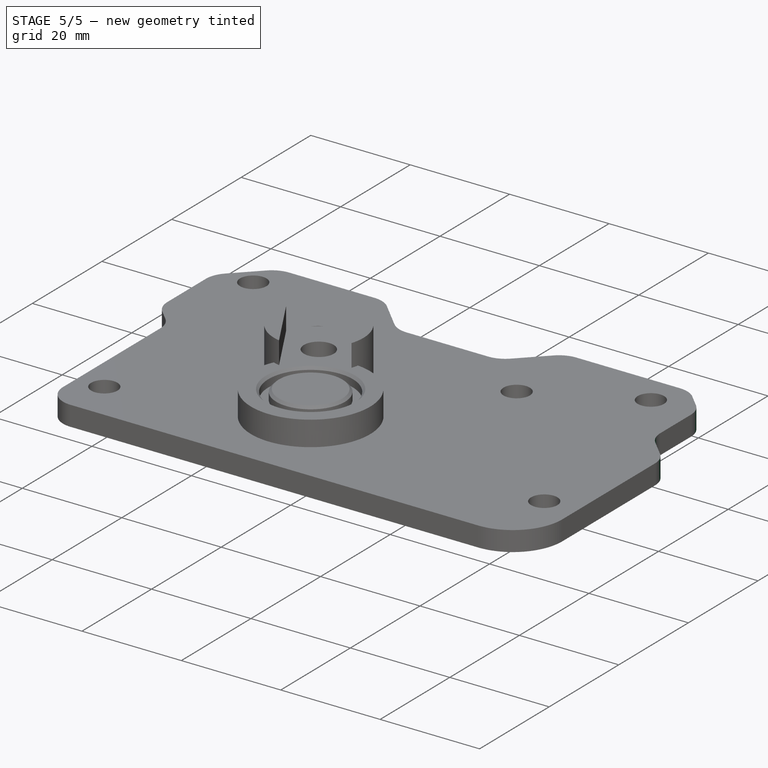
[diagram: stage 5 of 5 — iso view after this stage's code; geometry added in this stage tinted green]
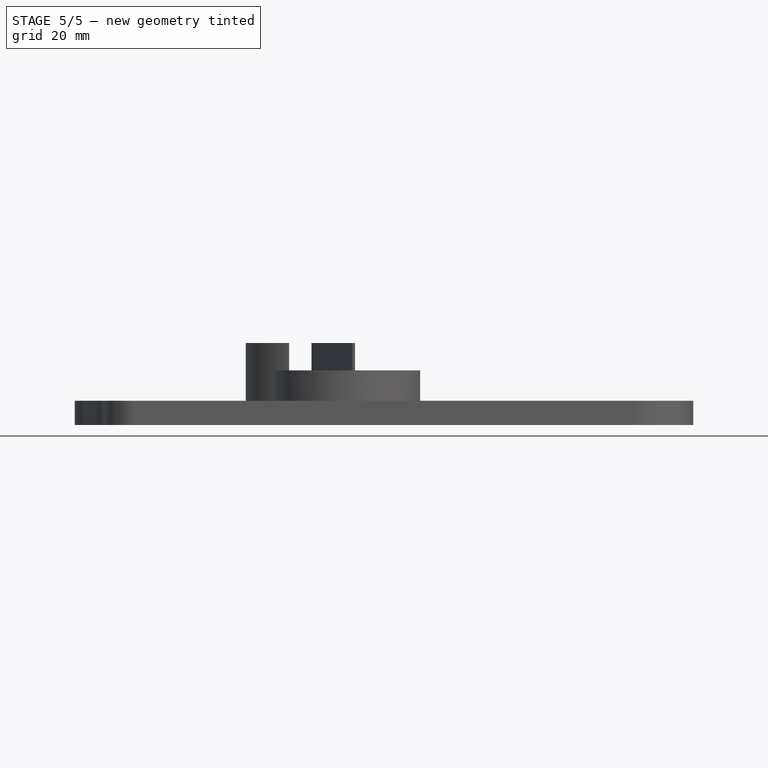
[diagram: stage 5 of 5 — front view after this stage's code; geometry added in this stage tinted green]
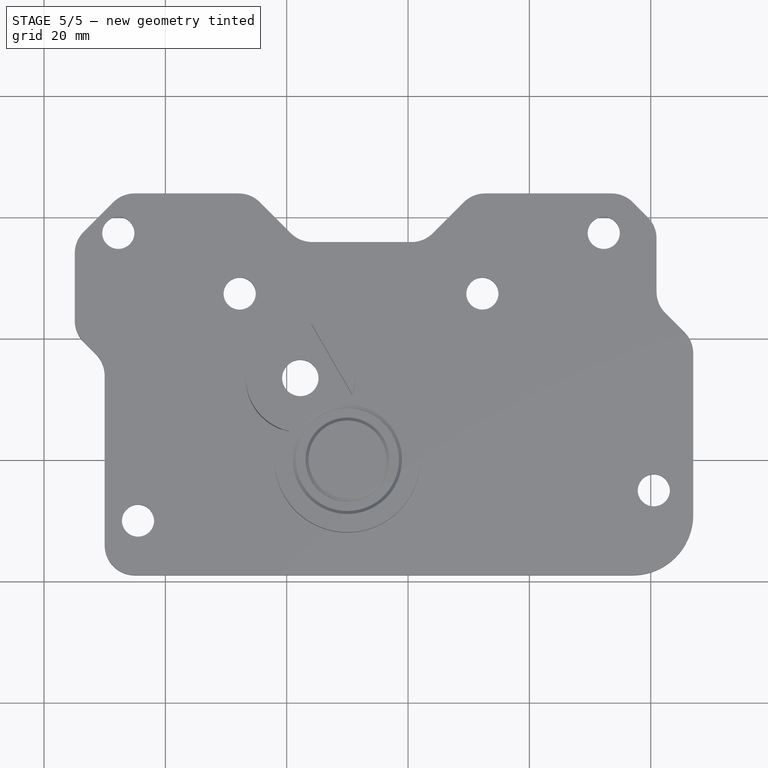
[diagram: stage 5 of 5 — top view after this stage's code; geometry added in this stage tinted green]
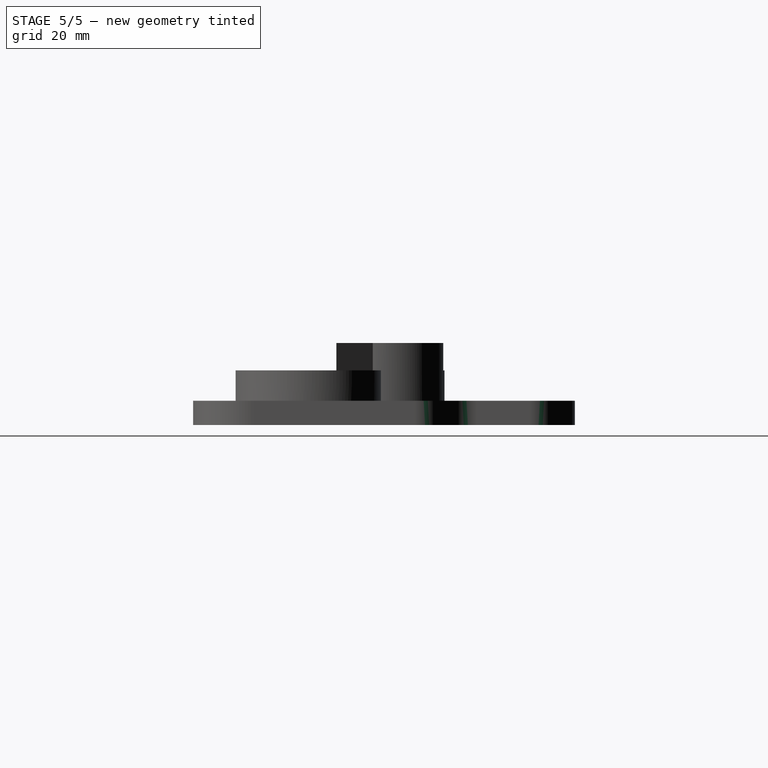
[diagram: stage 5 of 5 — right view after this stage's code; geometry added in this stage tinted green]
FEATURE [PartDesign::Fillet] Fillet005
  Base = -> Fillet004 [Edge80,Edge84,Edge82]
  BaseFeature = -> Fillet004
  Radius = 5
  SupportTransform = false
FEATURE [PartDesign::Chamfer] Chamfer
  Angle = 45
  Base = -> Fillet005 [Edge161]
  BaseFeature = -> Fillet005
  ChamferType = 0
  FlipDirection = false
  Size = 0.5
  Size2 = 1
  SupportTransform = false
FEATURE [PartDesign::Chamfer] Chamfer001
  Angle = 45
  Base = -> Chamfer [Edge8]
  BaseFeature = -> Chamfer
  ChamferType = 0
  FlipDirection = false
  Size = 0.5
  Size2 = 1
  SupportTransform = false
FEATURE [PartDesign::Body] Body
  Group = -> [Sketch,Pad,Sketch001,Pad001,Sketch002,Pad002,Sketch003,Pad003,Sketch004,Pad004,Sketch005,Sketch006,Pocket,Sketch007,Pad005,Sketch008,Pocket001,Fillet,Fillet001,Fillet002,Fillet003,Fillet004,Fillet005,Chamfer,Chamfer001]
  Origin = -> Origin
  Tip = -> Chamfer001
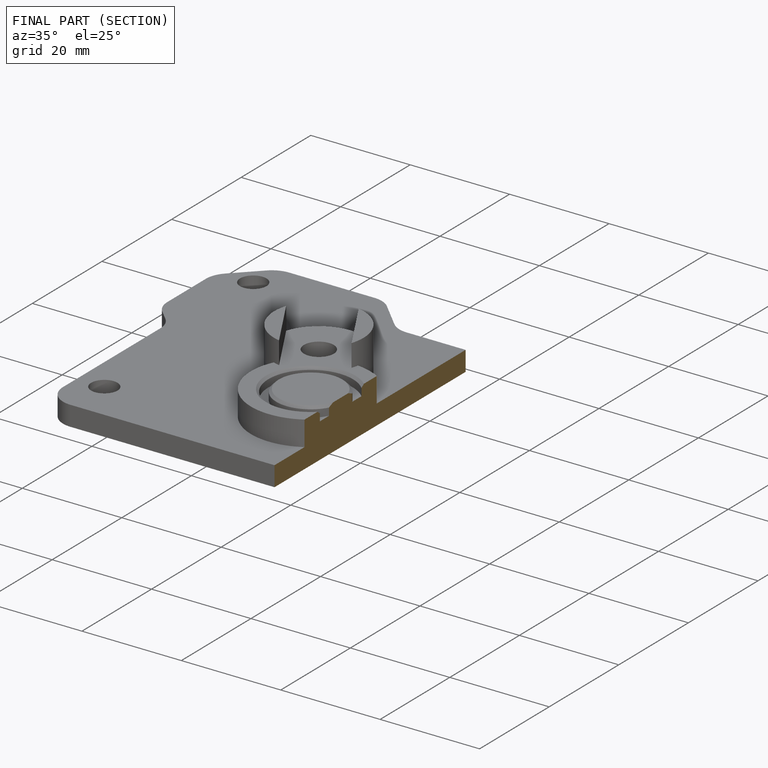
[diagram: finished part — half-section view (interior)]
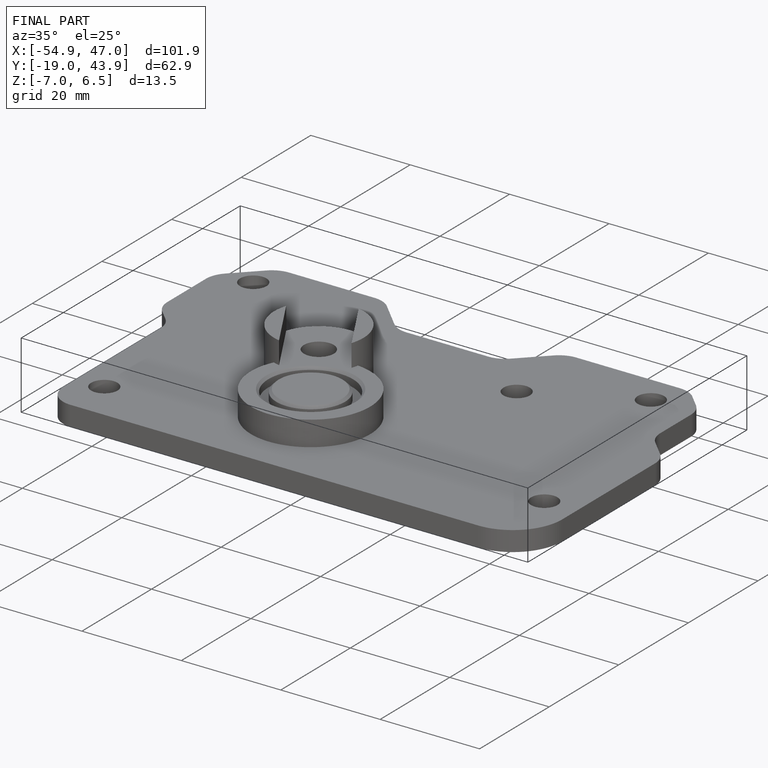
[diagram: finished part — iso view with bounding-box wireframe]
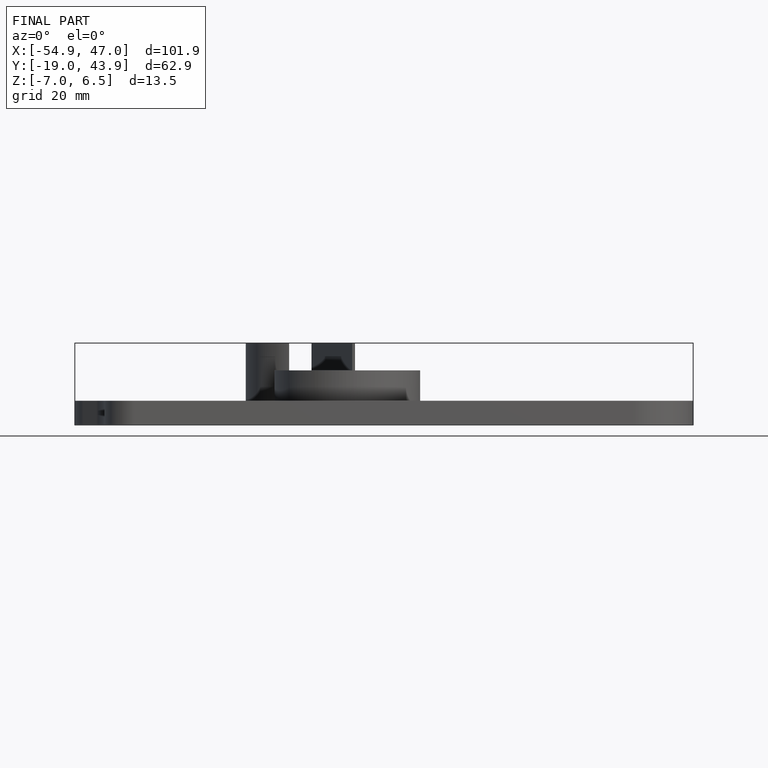
[diagram: finished part — front view with bounding-box wireframe]
